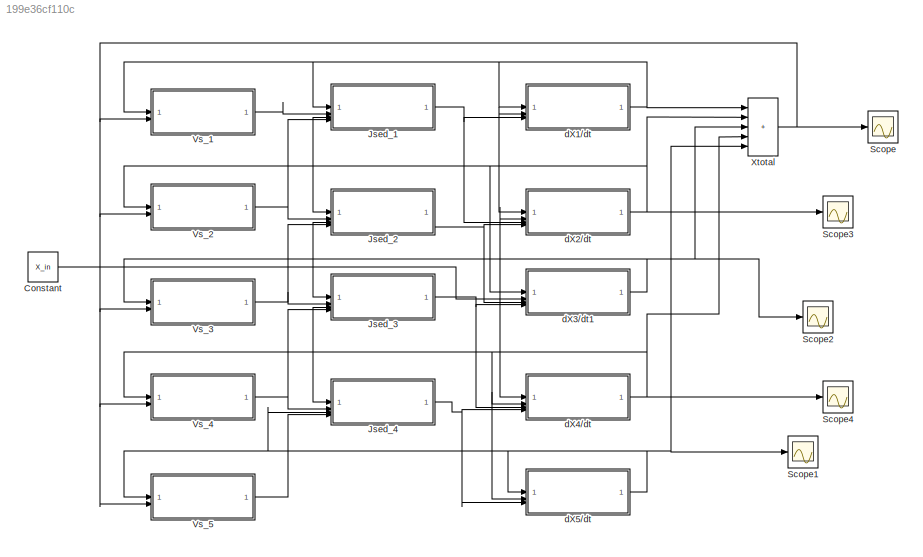
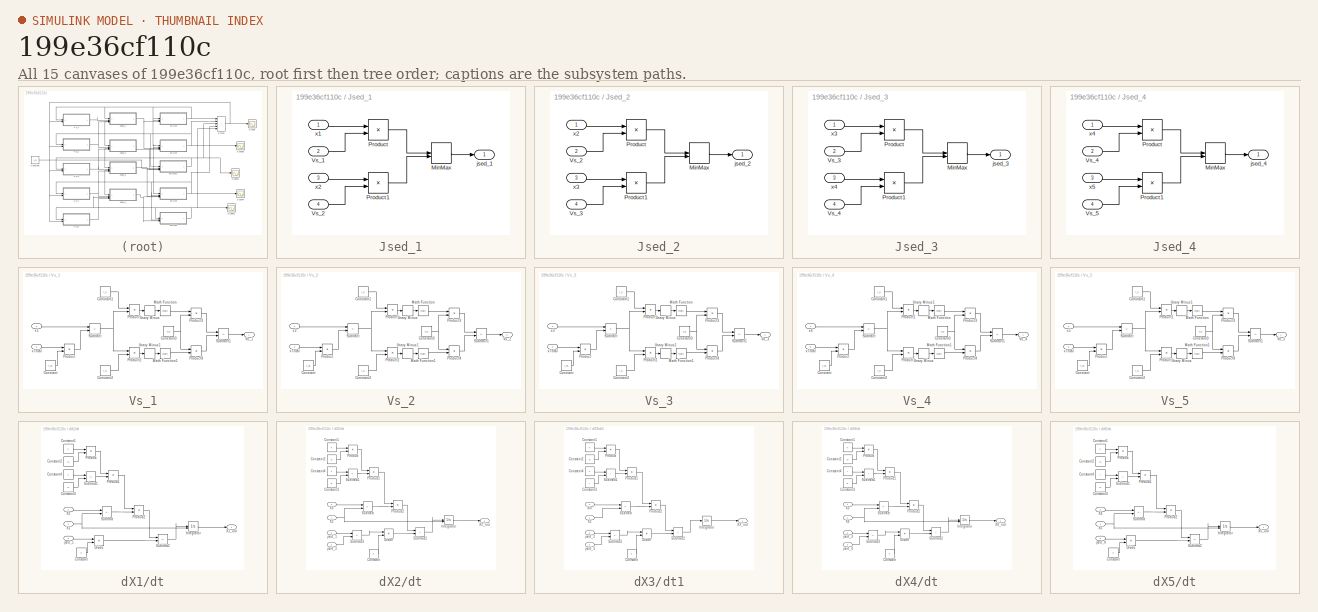
[diagram: thumbnail index - all 15 canvases of the model, root first then tree order]
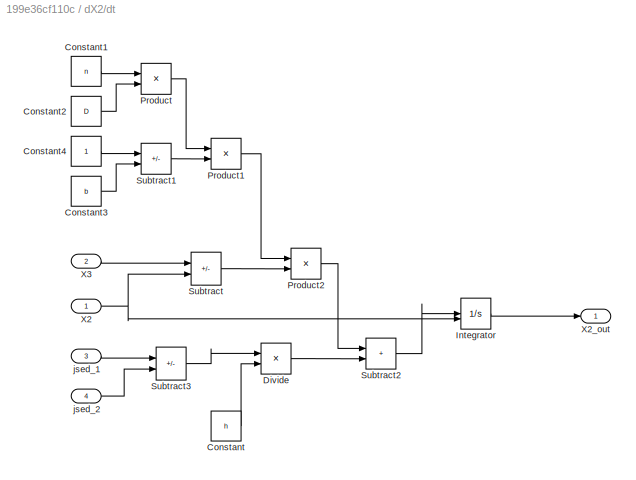
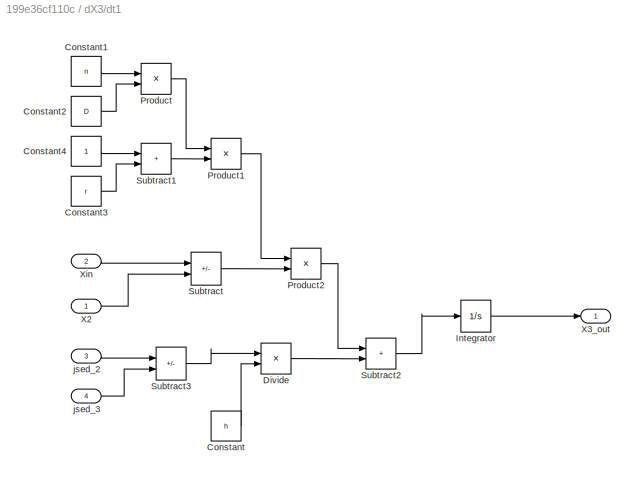
MODEL slx_199e36cf110c
KIND model
CONFIG AbsTol = auto
CONFIG EnableMultiTasking = off
CONFIG FixedStep = auto
CONFIG MaxStep = auto
CONFIG MinStep = auto
CONFIG RelTol = 1e-3
CONFIG SampleTimeConstraint = Unconstrained
CONFIG SolverName = VariableStepAuto
CONFIG StartTime = 0.0
CONFIG StopTime = 1000
BLOCK [Constant] Constant
  Value = X_in
BLOCK [SubSystem] Jsed_1
BLOCK [MinMax] Jsed_1/MinMax
  Inputs = 2
BLOCK [Product] Jsed_1/Product
BLOCK [Product] Jsed_1/Product1
BLOCK [Inport] Jsed_1/Vs_1
  Port = 2
BLOCK [Inport] Jsed_1/Vs_2
  Port = 4
BLOCK [Outport] Jsed_1/jsed_1
BLOCK [Inport] Jsed_1/x1
BLOCK [Inport] Jsed_1/x2
  Port = 3
BLOCK [SubSystem] Jsed_2
BLOCK [MinMax] Jsed_2/MinMax
  Inputs = 2
BLOCK [Product] Jsed_2/Product
BLOCK [Product] Jsed_2/Product1
BLOCK [Inport] Jsed_2/Vs_2
  Port = 2
BLOCK [Inport] Jsed_2/Vs_3
  Port = 4
BLOCK [Outport] Jsed_2/jsed_2
BLOCK [Inport] Jsed_2/x2
BLOCK [Inport] Jsed_2/x3
  Port = 3
BLOCK [SubSystem] Jsed_3
BLOCK [MinMax] Jsed_3/MinMax
  Inputs = 2
BLOCK [Product] Jsed_3/Product
BLOCK [Product] Jsed_3/Product1
BLOCK [Inport] Jsed_3/Vs_3
  Port = 2
BLOCK [Inport] Jsed_3/Vs_4
  Port = 4
BLOCK [Outport] Jsed_3/jsed_3
BLOCK [Inport] Jsed_3/x3
BLOCK [Inport] Jsed_3/x4
  Port = 3
BLOCK [SubSystem] Jsed_4
BLOCK [MinMax] Jsed_4/MinMax
  Inputs = 2
BLOCK [Product] Jsed_4/Product
BLOCK [Product] Jsed_4/Product1
BLOCK [Inport] Jsed_4/Vs_4
  Port = 2
BLOCK [Inport] Jsed_4/Vs_5
  Port = 4
BLOCK [Outport] Jsed_4/jsed_4
BLOCK [Inport] Jsed_4/x4
BLOCK [Inport] Jsed_4/x5
  Port = 3
BLOCK [Scope] Scope
  Floating = off
  NumInputPorts = 1
  ScopeSpecificationString = Simulink.scopes.TimeScopeBlockCfg('CurrentConfiguration', extmgr.ConfigurationSet(extmgr.Configuration('Core','General UI',true),extmgr.Configuration('Core','Source UI',true),extmgr.Configuration('Sources','WiredSimulink',true),extmgr.Configuration('Visuals','Time Domain',true,'SerializedDisplays',{struct('MinYLimReal','8.77239','MaxYLimReal','21.04851','YLabelReal','','MinYLimMag','8.77239','MaxY...<+1460ch>
BLOCK [Scope] Scope1
  Floating = off
  NumInputPorts = 1
  ScopeSpecificationString = Simulink.scopes.TimeScopeBlockCfg('CurrentConfiguration', extmgr.ConfigurationSet(extmgr.Configuration('Core','General UI',true),extmgr.Configuration('Core','Source UI',true),extmgr.Configuration('Sources','WiredSimulink',true,'DataLoggingVariableName','ScopeData1'),extmgr.Configuration('Visuals','Time Domain',true,'SerializedDisplays',{struct('MinYLimReal','-0.28301','MaxYLimReal','2.54708','YLab...<+1454ch>
BLOCK [Scope] Scope2
  Floating = off
  NumInputPorts = 1
  ScopeSpecificationString = Simulink.scopes.TimeScopeBlockCfg('CurrentConfiguration', extmgr.ConfigurationSet(extmgr.Configuration('Core','General UI',true),extmgr.Configuration('Core','Source UI',true),extmgr.Configuration('Sources','WiredSimulink',true,'DataLoggingVariableName','ScopeData2'),extmgr.Configuration('Visuals','Time Domain',true,'SerializedDisplays',{struct('MinYLimReal','-0.76573','MaxYLimReal','6.89155','YLab...<+1455ch>
BLOCK [Scope] Scope3
  Floating = off
  NumInputPorts = 1
  ScopeSpecificationString = Simulink.scopes.TimeScopeBlockCfg('CurrentConfiguration', extmgr.ConfigurationSet(extmgr.Configuration('Core','General UI',true),extmgr.Configuration('Core','Source UI',true),extmgr.Configuration('Sources','WiredSimulink',true,'DataLoggingVariableName','ScopeData3'),extmgr.Configuration('Visuals','Time Domain',true,'SerializedDisplays',{struct('MinYLimReal','-0.05927','MaxYLimReal','0.53346','YLab...<+1454ch>
BLOCK [Scope] Scope4
  Floating = off
  NumInputPorts = 1
  ScopeSpecificationString = Simulink.scopes.TimeScopeBlockCfg('CurrentConfiguration', extmgr.ConfigurationSet(extmgr.Configuration('Core','General UI',true),extmgr.Configuration('Core','Source UI',true),extmgr.Configuration('Sources','WiredSimulink',true,'DataLoggingVariableName','ScopeData4'),extmgr.Configuration('Visuals','Time Domain',true,'SerializedDisplays',{struct('MinYLimReal','-1.67515','MaxYLimReal','15.07635','YLa...<+1501ch>
BLOCK [SubSystem] Vs_1
BLOCK [Constant] Vs_1/Constant
  Value = f_ns
BLOCK [Constant] Vs_1/Constant1
  Value = r_h
BLOCK [Constant] Vs_1/Constant2
  Value = r_p
  VectorParams1D = off
BLOCK [Constant] Vs_1/Constant3
  Value = v_0
BLOCK [Math] Vs_1/Math Function
BLOCK [Math] Vs_1/Math Function1
BLOCK [Product] Vs_1/Product
BLOCK [Product] Vs_1/Product1
BLOCK [Product] Vs_1/Product2
BLOCK [Product] Vs_1/Product3
BLOCK [Product] Vs_1/Product4
BLOCK [Sum] Vs_1/Subtract
  IconShape = rectangular
  Inputs = +-
BLOCK [Sum] Vs_1/Subtract1
  IconShape = rectangular
  Inputs = +-
BLOCK [UnaryMinus] Vs_1/Unary Minus
BLOCK [UnaryMinus] Vs_1/Unary Minus1
BLOCK [Outport] Vs_1/Vs_1
BLOCK [Inport] Vs_1/x1
BLOCK [Inport] Vs_1/xTotal
  Port = 2
BLOCK [SubSystem] Vs_2
BLOCK [Constant] Vs_2/Constant
  Value = f_ns
BLOCK [Constant] Vs_2/Constant1
  Value = r_h
BLOCK [Constant] Vs_2/Constant2
  Value = r_p
  VectorParams1D = off
BLOCK [Constant] Vs_2/Constant3
  Value = v_0
BLOCK [Math] Vs_2/Math Function
BLOCK [Math] Vs_2/Math Function1
BLOCK [Product] Vs_2/Product
BLOCK [Product] Vs_2/Product1
BLOCK [Product] Vs_2/Product2
BLOCK [Product] Vs_2/Product3
BLOCK [Product] Vs_2/Product4
BLOCK [Sum] Vs_2/Subtract
  IconShape = rectangular
  Inputs = +-
BLOCK [Sum] Vs_2/Subtract1
  IconShape = rectangular
  Inputs = +-
BLOCK [UnaryMinus] Vs_2/Unary Minus
BLOCK [UnaryMinus] Vs_2/Unary Minus1
BLOCK [Outport] Vs_2/Vs_2
BLOCK [Inport] Vs_2/x2
BLOCK [Inport] Vs_2/xTotal
  Port = 2
BLOCK [SubSystem] Vs_3
BLOCK [Constant] Vs_3/Constant
  Value = f_ns
BLOCK [Constant] Vs_3/Constant1
  Value = r_h
BLOCK [Constant] Vs_3/Constant2
  Value = r_p
  VectorParams1D = off
BLOCK [Constant] Vs_3/Constant3
  Value = v_0
BLOCK [Math] Vs_3/Math Function
BLOCK [Math] Vs_3/Math Function1
BLOCK [Product] Vs_3/Product
BLOCK [Product] Vs_3/Product1
BLOCK [Product] Vs_3/Product2
BLOCK [Product] Vs_3/Product3
BLOCK [Product] Vs_3/Product4
BLOCK [Sum] Vs_3/Subtract
  IconShape = rectangular
  Inputs = +-
BLOCK [Sum] Vs_3/Subtract1
  IconShape = rectangular
  Inputs = +-
BLOCK [UnaryMinus] Vs_3/Unary Minus
BLOCK [UnaryMinus] Vs_3/Unary Minus1
BLOCK [Outport] Vs_3/Vs_3
BLOCK [Inport] Vs_3/x3
BLOCK [Inport] Vs_3/xTotal
  Port = 2
BLOCK [SubSystem] Vs_4
BLOCK [Constant] Vs_4/Constant
  Value = f_ns
BLOCK [Constant] Vs_4/Constant1
  Value = r_h
BLOCK [Constant] Vs_4/Constant2
  Value = r_p
  VectorParams1D = off
BLOCK [Constant] Vs_4/Constant3
  Value = v_0
BLOCK [Math] Vs_4/Math Function
BLOCK [Math] Vs_4/Math Function1
BLOCK [Product] Vs_4/Product
BLOCK [Product] Vs_4/Product1
BLOCK [Product] Vs_4/Product2
BLOCK [Product] Vs_4/Product3
BLOCK [Product] Vs_4/Product4
BLOCK [Sum] Vs_4/Subtract
  IconShape = rectangular
  Inputs = +-
BLOCK [Sum] Vs_4/Subtract1
  IconShape = rectangular
  Inputs = +-
BLOCK [UnaryMinus] Vs_4/Unary Minus
BLOCK [UnaryMinus] Vs_4/Unary Minus1
BLOCK [Outport] Vs_4/Vs_4
BLOCK [Inport] Vs_4/x4
BLOCK [Inport] Vs_4/xTotal
  Port = 2
BLOCK [SubSystem] Vs_5
BLOCK [Constant] Vs_5/Constant
  Value = f_ns
BLOCK [Constant] Vs_5/Constant1
  Value = r_h
BLOCK [Constant] Vs_5/Constant2
  Value = r_p
  VectorParams1D = off
BLOCK [Constant] Vs_5/Constant3
  Value = v_0
BLOCK [Math] Vs_5/Math Function
BLOCK [Math] Vs_5/Math Function1
BLOCK [Product] Vs_5/Product
BLOCK [Product] Vs_5/Product1
BLOCK [Product] Vs_5/Product2
BLOCK [Product] Vs_5/Product3
BLOCK [Product] Vs_5/Product4
BLOCK [Sum] Vs_5/Subtract
  IconShape = rectangular
  Inputs = +-
BLOCK [Sum] Vs_5/Subtract1
  IconShape = rectangular
  Inputs = +-
BLOCK [UnaryMinus] Vs_5/Unary Minus
BLOCK [UnaryMinus] Vs_5/Unary Minus1
BLOCK [Outport] Vs_5/Vs_5
BLOCK [Inport] Vs_5/x5
BLOCK [Inport] Vs_5/xTotal
  Port = 2
BLOCK [Sum] Xtotal
  IconShape = rectangular
  Inputs = +++++
BLOCK [SubSystem] dX1//dt
BLOCK [Constant] dX1//dt/Constant
  Value = h
BLOCK [Constant] dX1//dt/Constant1
  Value = n
BLOCK [Constant] dX1//dt/Constant2
  Value = D
BLOCK [Constant] dX1//dt/Constant3
  Value = b
BLOCK [Constant] dX1//dt/Constant4
BLOCK [Product] dX1//dt/Divide
  Inputs = */
BLOCK [Integrator] dX1//dt/Integrator
  InitialConditionSource = external
BLOCK [Product] dX1//dt/Product
BLOCK [Product] dX1//dt/Product1
BLOCK [Product] dX1//dt/Product2
BLOCK [Sum] dX1//dt/Subtract
  IconShape = rectangular
  Inputs = +-
BLOCK [Sum] dX1//dt/Subtract1
  IconShape = rectangular
  Inputs = +-
BLOCK [Sum] dX1//dt/Subtract2
  IconShape = rectangular
  Inputs = +-
BLOCK [Inport] dX1//dt/X1
BLOCK [Outport] dX1//dt/X1_out
BLOCK [Inport] dX1//dt/X2
  Port = 2
BLOCK [Inport] dX1//dt/jsed_1
  Port = 3
BLOCK [SubSystem] dX2//dt
BLOCK [Constant] dX2//dt/Constant
  Value = h
BLOCK [Constant] dX2//dt/Constant1
  Value = n
BLOCK [Constant] dX2//dt/Constant2
  Value = D
BLOCK [Constant] dX2//dt/Constant3
  Value = b
BLOCK [Constant] dX2//dt/Constant4
BLOCK [Product] dX2//dt/Divide
  Inputs = */
BLOCK [Integrator] dX2//dt/Integrator
  InitialConditionSource = external
BLOCK [Product] dX2//dt/Product
BLOCK [Product] dX2//dt/Product1
BLOCK [Product] dX2//dt/Product2
BLOCK [Sum] dX2//dt/Subtract
  IconShape = rectangular
  Inputs = +-
BLOCK [Sum] dX2//dt/Subtract1
  IconShape = rectangular
  Inputs = +-
BLOCK [Sum] dX2//dt/Subtract2
  IconShape = rectangular
BLOCK [Sum] dX2//dt/Subtract3
  IconShape = rectangular
  Inputs = +-
BLOCK [Inport] dX2//dt/X2
BLOCK [Outport] dX2//dt/X2_out
BLOCK [Inport] dX2//dt/X3
  Port = 2
BLOCK [Inport] dX2//dt/jsed_1
  Port = 3
BLOCK [Inport] dX2//dt/jsed_2
  Port = 4
BLOCK [SubSystem] dX3//dt1
BLOCK [Constant] dX3//dt1/Constant
  Value = h
BLOCK [Constant] dX3//dt1/Constant1
  Value = n
BLOCK [Constant] dX3//dt1/Constant2
  Value = D
BLOCK [Constant] dX3//dt1/Constant3
  Value = r
BLOCK [Constant] dX3//dt1/Constant4
BLOCK [Product] dX3//dt1/Divide
  Inputs = */
BLOCK [Integrator] dX3//dt1/Integrator
BLOCK [Product] dX3//dt1/Product
BLOCK [Product] dX3//dt1/Product1
BLOCK [Product] dX3//dt1/Product2
BLOCK [Sum] dX3//dt1/Subtract
  IconShape = rectangular
  Inputs = +-
BLOCK [Sum] dX3//dt1/Subtract1
  IconShape = rectangular
BLOCK [Sum] dX3//dt1/Subtract2
  IconShape = rectangular
BLOCK [Sum] dX3//dt1/Subtract3
  IconShape = rectangular
  Inputs = +-
BLOCK [Inport] dX3//dt1/X2
BLOCK [Outport] dX3//dt1/X3_out
BLOCK [Inport] dX3//dt1/Xin
  Port = 2
BLOCK [Inport] dX3//dt1/jsed_2
  Port = 3
BLOCK [Inport] dX3//dt1/jsed_3
  Port = 4
BLOCK [SubSystem] dX4//dt
BLOCK [Constant] dX4//dt/Constant
  Value = h
BLOCK [Constant] dX4//dt/Constant1
  Value = n
BLOCK [Constant] dX4//dt/Constant2
  Value = D
BLOCK [Constant] dX4//dt/Constant3
  Value = b
BLOCK [Constant] dX4//dt/Constant4
  Value = r
BLOCK [Product] dX4//dt/Divide
  Inputs = */
BLOCK [Integrator] dX4//dt/Integrator
  InitialConditionSource = external
BLOCK [Product] dX4//dt/Product
BLOCK [Product] dX4//dt/Product1
BLOCK [Product] dX4//dt/Product2
BLOCK [Sum] dX4//dt/Subtract
  IconShape = rectangular
  Inputs = +-
BLOCK [Sum] dX4//dt/Subtract1
  IconShape = rectangular
BLOCK [Sum] dX4//dt/Subtract2
  IconShape = rectangular
BLOCK [Sum] dX4//dt/Subtract3
  IconShape = rectangular
  Inputs = +-
BLOCK [Inport] dX4//dt/X3
BLOCK [Inport] dX4//dt/X4
  Port = 2
BLOCK [Outport] dX4//dt/X4_out
BLOCK [Inport] dX4//dt/jsed_3
  Port = 3
BLOCK [Inport] dX4//dt/jsed_4
  Port = 4
BLOCK [SubSystem] dX5//dt
BLOCK [Constant] dX5//dt/Constant
  Value = h
BLOCK [Constant] dX5//dt/Constant1
  Value = n
BLOCK [Constant] dX5//dt/Constant2
  Value = D
BLOCK [Constant] dX5//dt/Constant3
  Value = b
BLOCK [Constant] dX5//dt/Constant4
  Value = r
BLOCK [Product] dX5//dt/Divide
  Inputs = */
BLOCK [Integrator] dX5//dt/Integrator
  InitialConditionSource = external
BLOCK [Product] dX5//dt/Product
BLOCK [Product] dX5//dt/Product1
BLOCK [Product] dX5//dt/Product2
BLOCK [Sum] dX5//dt/Subtract
  IconShape = rectangular
  Inputs = +-
BLOCK [Sum] dX5//dt/Subtract1
  IconShape = rectangular
BLOCK [Sum] dX5//dt/Subtract2
  IconShape = rectangular
  Inputs = +-
BLOCK [Inport] dX5//dt/X4
  Port = 2
BLOCK [Inport] dX5//dt/X5
BLOCK [Outport] dX5//dt/X5_out
BLOCK [Inport] dX5//dt/jsed_4
  Port = 3
LINE Constant:1 -> dX3//dt1:2
LINE Jsed_1/MinMax:1 -> Jsed_1/jsed_1:1
LINE Jsed_1/Product1:1 -> Jsed_1/MinMax:2
LINE Jsed_1/Product:1 -> Jsed_1/MinMax:1
LINE Jsed_1/Vs_1:1 -> Jsed_1/Product:2
LINE Jsed_1/Vs_2:1 -> Jsed_1/Product1:2
LINE Jsed_1/x1:1 -> Jsed_1/Product:1
LINE Jsed_1/x2:1 -> Jsed_1/Product1:1
NET Jsed_1:1 -> dX1//dt:3, dX2//dt:3
LINE Jsed_2/MinMax:1 -> Jsed_2/jsed_2:1
LINE Jsed_2/Product1:1 -> Jsed_2/MinMax:2
LINE Jsed_2/Product:1 -> Jsed_2/MinMax:1
LINE Jsed_2/Vs_2:1 -> Jsed_2/Product:2
LINE Jsed_2/Vs_3:1 -> Jsed_2/Product1:2
LINE Jsed_2/x2:1 -> Jsed_2/Product:1
LINE Jsed_2/x3:1 -> Jsed_2/Product1:1
NET Jsed_2:1 -> dX2//dt:4, dX3//dt1:3
LINE Jsed_3/MinMax:1 -> Jsed_3/jsed_3:1
LINE Jsed_3/Product1:1 -> Jsed_3/MinMax:2
LINE Jsed_3/Product:1 -> Jsed_3/MinMax:1
LINE Jsed_3/Vs_3:1 -> Jsed_3/Product:2
LINE Jsed_3/Vs_4:1 -> Jsed_3/Product1:2
LINE Jsed_3/x3:1 -> Jsed_3/Product:1
LINE Jsed_3/x4:1 -> Jsed_3/Product1:1
NET Jsed_3:1 -> dX3//dt1:4, dX4//dt:3
LINE Jsed_4/MinMax:1 -> Jsed_4/jsed_4:1
LINE Jsed_4/Product1:1 -> Jsed_4/MinMax:2
LINE Jsed_4/Product:1 -> Jsed_4/MinMax:1
LINE Jsed_4/Vs_4:1 -> Jsed_4/Product:2
LINE Jsed_4/Vs_5:1 -> Jsed_4/Product1:2
LINE Jsed_4/x4:1 -> Jsed_4/Product:1
LINE Jsed_4/x5:1 -> Jsed_4/Product1:1
NET Jsed_4:1 -> dX4//dt:4, dX5//dt:3
LINE Vs_1/Constant1:1 -> Vs_1/Product1:1
LINE Vs_1/Constant2:1 -> Vs_1/Product2:2
NET Vs_1/Constant3:1 -> Vs_1/Product3:2, Vs_1/Product4:1
LINE Vs_1/Constant:1 -> Vs_1/Product:2
LINE Vs_1/Math Function1:1 -> Vs_1/Product4:2
LINE Vs_1/Math Function:1 -> Vs_1/Product3:1
LINE Vs_1/Product1:1 -> Vs_1/Unary Minus:1
LINE Vs_1/Product2:1 -> Vs_1/Unary Minus1:1
LINE Vs_1/Product3:1 -> Vs_1/Subtract1:1
LINE Vs_1/Product4:1 -> Vs_1/Subtract1:2
LINE Vs_1/Product:1 -> Vs_1/Subtract:2
LINE Vs_1/Subtract1:1 -> Vs_1/Vs_1:1
NET Vs_1/Subtract:1 -> Vs_1/Product1:2, Vs_1/Product2:1
LINE Vs_1/Unary Minus1:1 -> Vs_1/Math Function1:1
LINE Vs_1/Unary Minus:1 -> Vs_1/Math Function:1
LINE Vs_1/x1:1 -> Vs_1/Subtract:1
LINE Vs_1/xTotal:1 -> Vs_1/Product:1
LINE Vs_1:1 -> Jsed_1:2
LINE Vs_2/Constant1:1 -> Vs_2/Product1:1
LINE Vs_2/Constant2:1 -> Vs_2/Product2:2
NET Vs_2/Constant3:1 -> Vs_2/Product3:2, Vs_2/Product4:1
LINE Vs_2/Constant:1 -> Vs_2/Product:2
LINE Vs_2/Math Function1:1 -> Vs_2/Product4:2
LINE Vs_2/Math Function:1 -> Vs_2/Product3:1
LINE Vs_2/Product1:1 -> Vs_2/Unary Minus:1
LINE Vs_2/Product2:1 -> Vs_2/Unary Minus1:1
LINE Vs_2/Product3:1 -> Vs_2/Subtract1:1
LINE Vs_2/Product4:1 -> Vs_2/Subtract1:2
LINE Vs_2/Product:1 -> Vs_2/Subtract:2
LINE Vs_2/Subtract1:1 -> Vs_2/Vs_2:1
NET Vs_2/Subtract:1 -> Vs_2/Product1:2, Vs_2/Product2:1
LINE Vs_2/Unary Minus1:1 -> Vs_2/Math Function1:1
LINE Vs_2/Unary Minus:1 -> Vs_2/Math Function:1
LINE Vs_2/x2:1 -> Vs_2/Subtract:1
LINE Vs_2/xTotal:1 -> Vs_2/Product:1
NET Vs_2:1 -> Jsed_1:4, Jsed_2:2
LINE Vs_3/Constant1:1 -> Vs_3/Product1:1
LINE Vs_3/Constant2:1 -> Vs_3/Product2:2
NET Vs_3/Constant3:1 -> Vs_3/Product3:2, Vs_3/Product4:1
LINE Vs_3/Constant:1 -> Vs_3/Product:2
LINE Vs_3/Math Function1:1 -> Vs_3/Product4:2
LINE Vs_3/Math Function:1 -> Vs_3/Product3:1
LINE Vs_3/Product1:1 -> Vs_3/Unary Minus:1
LINE Vs_3/Product2:1 -> Vs_3/Unary Minus1:1
LINE Vs_3/Product3:1 -> Vs_3/Subtract1:1
LINE Vs_3/Product4:1 -> Vs_3/Subtract1:2
LINE Vs_3/Product:1 -> Vs_3/Subtract:2
LINE Vs_3/Subtract1:1 -> Vs_3/Vs_3:1
NET Vs_3/Subtract:1 -> Vs_3/Product1:2, Vs_3/Product2:1
LINE Vs_3/Unary Minus1:1 -> Vs_3/Math Function1:1
LINE Vs_3/Unary Minus:1 -> Vs_3/Math Function:1
LINE Vs_3/x3:1 -> Vs_3/Subtract:1
LINE Vs_3/xTotal:1 -> Vs_3/Product:1
NET Vs_3:1 -> Jsed_2:4, Jsed_3:2
LINE Vs_4/Constant1:1 -> Vs_4/Product1:1
LINE Vs_4/Constant2:1 -> Vs_4/Product2:2
NET Vs_4/Constant3:1 -> Vs_4/Product3:2, Vs_4/Product4:1
LINE Vs_4/Constant:1 -> Vs_4/Product:2
LINE Vs_4/Math Function1:1 -> Vs_4/Product4:2
LINE Vs_4/Math Function:1 -> Vs_4/Product3:1
LINE Vs_4/Product1:1 -> Vs_4/Unary Minus1:1
LINE Vs_4/Product2:1 -> Vs_4/Unary Minus:1
LINE Vs_4/Product3:1 -> Vs_4/Subtract1:1
LINE Vs_4/Product4:1 -> Vs_4/Subtract1:2
LINE Vs_4/Product:1 -> Vs_4/Subtract:2
LINE Vs_4/Subtract1:1 -> Vs_4/Vs_4:1
NET Vs_4/Subtract:1 -> Vs_4/Product1:2, Vs_4/Product2:1
LINE Vs_4/Unary Minus1:1 -> Vs_4/Math Function:1
LINE Vs_4/Unary Minus:1 -> Vs_4/Math Function1:1
LINE Vs_4/x4:1 -> Vs_4/Subtract:1
LINE Vs_4/xTotal:1 -> Vs_4/Product:1
NET Vs_4:1 -> Jsed_3:4, Jsed_4:2
LINE Vs_5/Constant1:1 -> Vs_5/Product1:1
LINE Vs_5/Constant2:1 -> Vs_5/Product2:2
NET Vs_5/Constant3:1 -> Vs_5/Product3:2, Vs_5/Product4:1
LINE Vs_5/Constant:1 -> Vs_5/Product:2
LINE Vs_5/Math Function1:1 -> Vs_5/Product4:2
LINE Vs_5/Math Function:1 -> Vs_5/Product3:1
LINE Vs_5/Product1:1 -> Vs_5/Unary Minus1:1
LINE Vs_5/Product2:1 -> Vs_5/Unary Minus:1
LINE Vs_5/Product3:1 -> Vs_5/Subtract1:1
LINE Vs_5/Product4:1 -> Vs_5/Subtract1:2
LINE Vs_5/Product:1 -> Vs_5/Subtract:2
LINE Vs_5/Subtract1:1 -> Vs_5/Vs_5:1
NET Vs_5/Subtract:1 -> Vs_5/Product1:2, Vs_5/Product2:1
LINE Vs_5/Unary Minus1:1 -> Vs_5/Math Function:1
LINE Vs_5/Unary Minus:1 -> Vs_5/Math Function1:1
LINE Vs_5/x5:1 -> Vs_5/Subtract:1
LINE Vs_5/xTotal:1 -> Vs_5/Product:1
LINE Vs_5:1 -> Jsed_4:4
NET Xtotal:1 -> Scope:1, Vs_1:2, Vs_2:2, Vs_3:2, Vs_4:2, Vs_5:2
LINE dX1//dt/Constant1:1 -> dX1//dt/Product:1
LINE dX1//dt/Constant2:1 -> dX1//dt/Product:2
LINE dX1//dt/Constant3:1 -> dX1//dt/Subtract1:2
LINE dX1//dt/Constant4:1 -> dX1//dt/Subtract1:1
LINE dX1//dt/Constant:1 -> dX1//dt/Divide:2
LINE dX1//dt/Divide:1 -> dX1//dt/Subtract2:2
LINE dX1//dt/Integrator:1 -> dX1//dt/X1_out:1
LINE dX1//dt/Product1:1 -> dX1//dt/Product2:1
LINE dX1//dt/Product2:1 -> dX1//dt/Subtract2:1
LINE dX1//dt/Product:1 -> dX1//dt/Product1:1
LINE dX1//dt/Subtract1:1 -> dX1//dt/Product1:2
LINE dX1//dt/Subtract2:1 -> dX1//dt/Integrator:1
LINE dX1//dt/Subtract:1 -> dX1//dt/Product2:2
NET dX1//dt/X1:1 -> dX1//dt/Integrator:2, dX1//dt/Subtract:2
LINE dX1//dt/X2:1 -> dX1//dt/Subtract:1
LINE dX1//dt/jsed_1:1 -> dX1//dt/Divide:1
NET dX1//dt:1 -> Jsed_1:1, Vs_1:1, Xtotal:1, dX1//dt:1
LINE dX2//dt/Constant1:1 -> dX2//dt/Product:1
LINE dX2//dt/Constant2:1 -> dX2//dt/Product:2
LINE dX2//dt/Constant3:1 -> dX2//dt/Subtract1:2
LINE dX2//dt/Constant4:1 -> dX2//dt/Subtract1:1
LINE dX2//dt/Constant:1 -> dX2//dt/Divide:2
LINE dX2//dt/Divide:1 -> dX2//dt/Subtract2:2
LINE dX2//dt/Integrator:1 -> dX2//dt/X2_out:1
LINE dX2//dt/Product1:1 -> dX2//dt/Product2:1
LINE dX2//dt/Product2:1 -> dX2//dt/Subtract2:1
LINE dX2//dt/Product:1 -> dX2//dt/Product1:1
LINE dX2//dt/Subtract1:1 -> dX2//dt/Product1:2
LINE dX2//dt/Subtract2:1 -> dX2//dt/Integrator:1
LINE dX2//dt/Subtract3:1 -> dX2//dt/Divide:1
LINE dX2//dt/Subtract:1 -> dX2//dt/Product2:2
NET dX2//dt/X2:1 -> dX2//dt/Integrator:2, dX2//dt/Subtract:2
LINE dX2//dt/X3:1 -> dX2//dt/Subtract:1
LINE dX2//dt/jsed_1:1 -> dX2//dt/Subtract3:1
LINE dX2//dt/jsed_2:1 -> dX2//dt/Subtract3:2
NET dX2//dt:1 -> Jsed_1:3, Jsed_2:1, Scope3:1, Vs_2:1, Xtotal:2, dX1//dt:2, dX2//dt:1, dX3//dt1:1
LINE dX3//dt1/Constant1:1 -> dX3//dt1/Product:1
LINE dX3//dt1/Constant2:1 -> dX3//dt1/Product:2
LINE dX3//dt1/Constant3:1 -> dX3//dt1/Subtract1:2
LINE dX3//dt1/Constant4:1 -> dX3//dt1/Subtract1:1
LINE dX3//dt1/Constant:1 -> dX3//dt1/Divide:2
LINE dX3//dt1/Divide:1 -> dX3//dt1/Subtract2:2
LINE dX3//dt1/Integrator:1 -> dX3//dt1/X3_out:1
LINE dX3//dt1/Product1:1 -> dX3//dt1/Product2:1
LINE dX3//dt1/Product2:1 -> dX3//dt1/Subtract2:1
LINE dX3//dt1/Product:1 -> dX3//dt1/Product1:1
LINE dX3//dt1/Subtract1:1 -> dX3//dt1/Product1:2
LINE dX3//dt1/Subtract2:1 -> dX3//dt1/Integrator:1
LINE dX3//dt1/Subtract3:1 -> dX3//dt1/Divide:1
LINE dX3//dt1/Subtract:1 -> dX3//dt1/Product2:2
LINE dX3//dt1/X2:1 -> dX3//dt1/Subtract:2
LINE dX3//dt1/Xin:1 -> dX3//dt1/Subtract:1
LINE dX3//dt1/jsed_2:1 -> dX3//dt1/Subtract3:1
LINE dX3//dt1/jsed_3:1 -> dX3//dt1/Subtract3:2
NET dX3//dt1:1 -> Jsed_2:3, Jsed_3:1, Scope2:1, Vs_3:1, Xtotal:3, dX2//dt:2, dX4//dt:1
LINE dX4//dt/Constant1:1 -> dX4//dt/Product:1
LINE dX4//dt/Constant2:1 -> dX4//dt/Product:2
LINE dX4//dt/Constant3:1 -> dX4//dt/Subtract1:2
LINE dX4//dt/Constant4:1 -> dX4//dt/Subtract1:1
LINE dX4//dt/Constant:1 -> dX4//dt/Divide:2
LINE dX4//dt/Divide:1 -> dX4//dt/Subtract2:2
LINE dX4//dt/Integrator:1 -> dX4//dt/X4_out:1
LINE dX4//dt/Product1:1 -> dX4//dt/Product2:1
LINE dX4//dt/Product2:1 -> dX4//dt/Subtract2:1
LINE dX4//dt/Product:1 -> dX4//dt/Product1:1
LINE dX4//dt/Subtract1:1 -> dX4//dt/Product1:2
LINE dX4//dt/Subtract2:1 -> dX4//dt/Integrator:1
LINE dX4//dt/Subtract3:1 -> dX4//dt/Divide:1
LINE dX4//dt/Subtract:1 -> dX4//dt/Product2:2
LINE dX4//dt/X3:1 -> dX4//dt/Subtract:1
NET dX4//dt/X4:1 -> dX4//dt/Integrator:2, dX4//dt/Subtract:2
LINE dX4//dt/jsed_3:1 -> dX4//dt/Subtract3:1
LINE dX4//dt/jsed_4:1 -> dX4//dt/Subtract3:2
NET dX4//dt:1 -> Jsed_3:3, Jsed_4:1, Scope4:1, Vs_4:1, Xtotal:4, dX4//dt:2, dX5//dt:2
LINE dX5//dt/Constant1:1 -> dX5//dt/Product:1
LINE dX5//dt/Constant2:1 -> dX5//dt/Product:2
LINE dX5//dt/Constant3:1 -> dX5//dt/Subtract1:2
LINE dX5//dt/Constant4:1 -> dX5//dt/Subtract1:1
LINE dX5//dt/Constant:1 -> dX5//dt/Divide:2
LINE dX5//dt/Divide:1 -> dX5//dt/Subtract2:2
LINE dX5//dt/Integrator:1 -> dX5//dt/X5_out:1
LINE dX5//dt/Product1:1 -> dX5//dt/Product2:1
LINE dX5//dt/Product2:1 -> dX5//dt/Subtract2:1
LINE dX5//dt/Product:1 -> dX5//dt/Product1:1
LINE dX5//dt/Subtract1:1 -> dX5//dt/Product1:2
LINE dX5//dt/Subtract2:1 -> dX5//dt/Integrator:1
LINE dX5//dt/Subtract:1 -> dX5//dt/Product2:2
LINE dX5//dt/X4:1 -> dX5//dt/Subtract:1
NET dX5//dt/X5:1 -> dX5//dt/Integrator:2, dX5//dt/Subtract:2
LINE dX5//dt/jsed_4:1 -> dX5//dt/Divide:1
NET dX5//dt:1 -> Jsed_4:3, Scope1:1, Vs_5:1, Xtotal:5, dX5//dt:1
note: NET lines group one-source signal fan-out (src -> all destinations, sorted); 1:1 wires keep LINE
